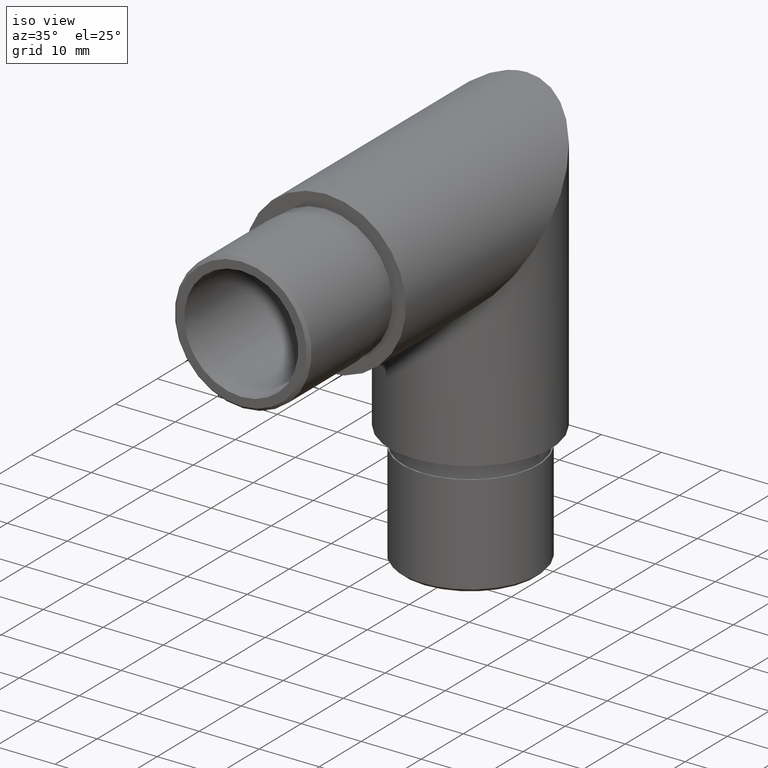
[diagram: clean part render]
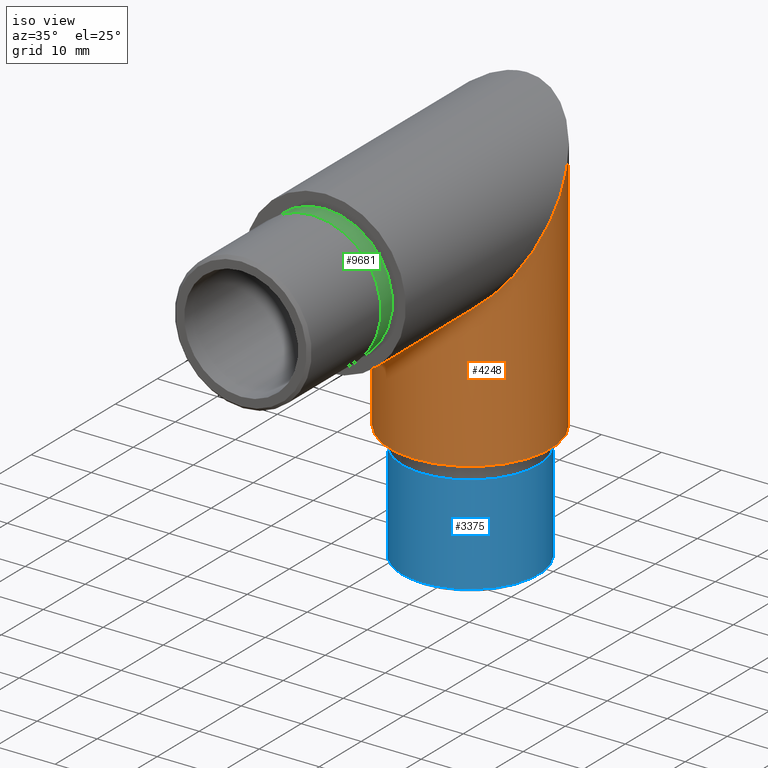
[diagram: same view with three faces highlighted in distinct colors, each labeled with its STEP entity id]
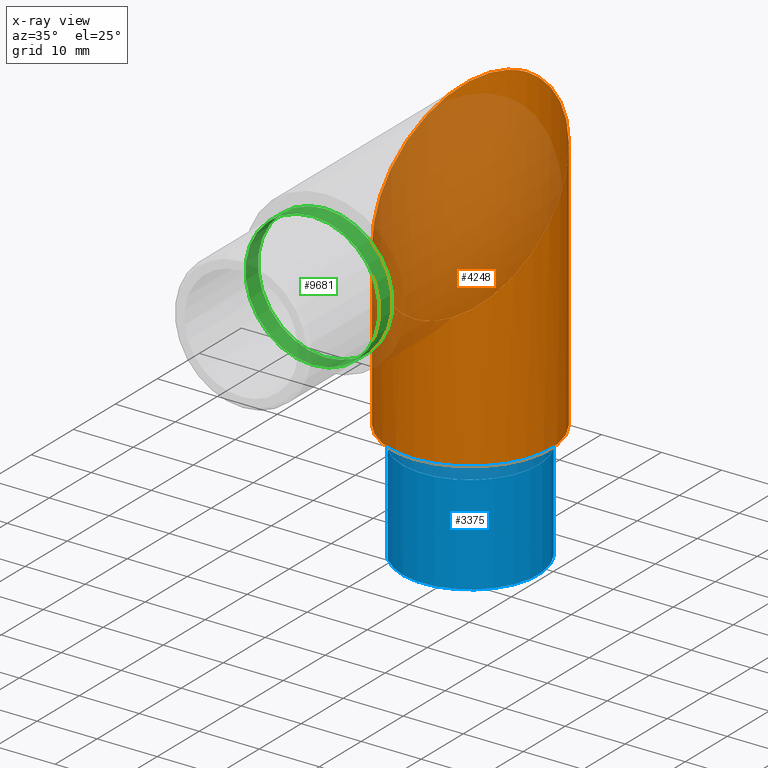
[diagram: x-ray of the same camera — body ghosted, the three highlighted faces saturated]
A machine part, iso view with three faces highlighted in distinct colors.
The next image is the same camera in x-ray (body ghosted, the three faces saturated) — at least one of them is partly hidden behind the body in this view.
Their STEP definitions:

[orange] entity #4248 — the highlighted cylindrical surface (bore or boss wall) has radius 13.45 mm, axis along (0, -0, -1).
#117 = CARTESIAN_POINT ( 'NONE',  ( 0.0000000000000000000, 34.54999999999986900, -34.54999999999999700 ) ) ;
#163 = DIRECTION ( 'NONE',  ( 0.0000000000000000000, -3.615053263974822800E-015, -1.000000000000000000 ) ) ;
#234 = DIRECTION ( 'NONE',  ( 0.0000000000000000000, 1.000000000000000000, -3.611320247386661200E-015 ) ) ;
#412 = CARTESIAN_POINT ( 'NONE',  ( 0.0000000000000000000, 21.09999999999994800, -13.44999999999999900 ) ) ;
#417 = EDGE_CURVE ( 'NONE', #1185, #1185, #6218, .T. ) ;
#1079 = AXIS2_PLACEMENT_3D ( 'NONE', #10225, #163, #6806 ) ;
#1185 = VERTEX_POINT ( 'NONE', #5514 ) ;
#1828 = VERTEX_POINT ( 'NONE', #412 ) ;
#2217 = CYLINDRICAL_SURFACE ( 'NONE', #1079, 13.45000000000000300 ) ;
#2271 = ORIENTED_EDGE ( 'NONE', *, *, #417, .T. ) ;
#2777 = CARTESIAN_POINT ( 'NONE',  ( 26.89999999999999900, 48.00000000000005000, 13.45000000000000500 ) ) ;
#2811 = CARTESIAN_POINT ( 'NONE',  ( 0.0000000000000000000, 21.09999999999994800, -13.44999999999999900 ) ) ;
#3341 = EDGE_LOOP ( 'NONE', ( #5848 ) ) ;
#3537 =( BOUNDED_CURVE ( )  B_SPLINE_CURVE ( 3, ( #2811, #10386, #7838, #9436, #2777, #5295, #9542 ),
 .UNSPECIFIED., .T., .F. ) 
 B_SPLINE_CURVE_WITH_KNOTS ( ( 4, 3, 4 ),
 ( 0.0000000000000000000, 3.141592653589793100, 6.283185307179586200 ),
 .UNSPECIFIED. ) 
 CURVE ( )  GEOMETRIC_REPRESENTATION_ITEM ( )  RATIONAL_B_SPLINE_CURVE ( ( 1.000000000000000000, 0.3333333333333333700, 0.3333333333333333700, 1.000000000000000000, 0.3333333333333333700, 0.3333333333333333700, 1.000000000000000000 ) ) 
 REPRESENTATION_ITEM ( '' )  );
#3547 = DIRECTION ( 'NONE',  ( -0.0000000000000000000, 3.615053263974822800E-015, 1.000000000000000000 ) ) ;
#4248 = ADVANCED_FACE ( 'NONE', ( #9064, #9984 ), #2217, .T. ) ;
#5295 = CARTESIAN_POINT ( 'NONE',  ( 26.89999999999999900, 21.09999999999994800, -13.44999999999999900 ) ) ;
#5409 = AXIS2_PLACEMENT_3D ( 'NONE', #117, #3547, #234 ) ;
#5514 = CARTESIAN_POINT ( 'NONE',  ( 0.0000000000000000000, 47.99999999999987900, -34.55000000000004700 ) ) ;
#5586 = EDGE_LOOP ( 'NONE', ( #2271 ) ) ;
#5848 = ORIENTED_EDGE ( 'NONE', *, *, #9043, .T. ) ;
#6218 = CIRCLE ( 'NONE', #5409, 13.45000000000000300 ) ;
#6806 = DIRECTION ( 'NONE',  ( 0.0000000000000000000, 1.000000000000000000, -3.615053263974822100E-015 ) ) ;
#7838 = CARTESIAN_POINT ( 'NONE',  ( -26.89999999999999900, 48.00000000000005000, 13.44999999999999900 ) ) ;
#9043 = EDGE_CURVE ( 'NONE', #1828, #1828, #3537, .T. ) ;
#9064 = FACE_OUTER_BOUND ( 'NONE', #3341, .T. ) ;
#9436 = CARTESIAN_POINT ( 'NONE',  ( -1.647149944853190000E-015, 48.00000000000004300, 13.44999999999999900 ) ) ;
#9542 = CARTESIAN_POINT ( 'NONE',  ( 0.0000000000000000000, 21.09999999999994800, -13.44999999999999900 ) ) ;
#9984 = FACE_OUTER_BOUND ( 'NONE', #5586, .T. ) ;
#10225 = CARTESIAN_POINT ( 'NONE',  ( 0.0000000000000000000, 34.54999999999999700, 0.0000000000000000000 ) ) ;
#10386 = CARTESIAN_POINT ( 'NONE',  ( -26.89999999999999900, 21.09999999999994800, -13.44999999999999900 ) ) ;

[blue] entity #3375 — the highlighted cylindrical surface (bore or boss wall) has radius 11.4 mm, axis along (-0, 0, 1).
#28 = CARTESIAN_POINT ( 'NONE',  ( 0.0000000000000000000, 34.54999999999981200, -54.05000000000000400 ) ) ;
#861 = AXIS2_PLACEMENT_3D ( 'NONE', #10492, #5405, #8697 ) ;
#1249 = CARTESIAN_POINT ( 'NONE',  ( 0.0000000000000000000, 34.54999999999981200, -54.54999999999999700 ) ) ;
#1370 = CARTESIAN_POINT ( 'NONE',  ( -11.40000000000000000, 34.54999999999981200, -54.05000000000000400 ) ) ;
#2669 = EDGE_LOOP ( 'NONE', ( #2770 ) ) ;
#2766 = AXIS2_PLACEMENT_3D ( 'NONE', #28, #8487, #3506 ) ;
#2770 = ORIENTED_EDGE ( 'NONE', *, *, #3832, .T. ) ;
#2927 = CARTESIAN_POINT ( 'NONE',  ( 0.0000000000000000000, 45.94999999999986800, -37.55000000000003300 ) ) ;
#3375 = ADVANCED_FACE ( 'NONE', ( #4614, #6567 ), #4223, .T. ) ;
#3506 = DIRECTION ( 'NONE',  ( -1.000000000000000000, 0.0000000000000000000, 0.0000000000000000000 ) ) ;
#3532 = CIRCLE ( 'NONE', #861, 11.40000000000000000 ) ;
#3832 = EDGE_CURVE ( 'NONE', #10766, #10766, #3532, .T. ) ;
#4223 = CYLINDRICAL_SURFACE ( 'NONE', #5364, 11.40000000000000000 ) ;
#4303 = ORIENTED_EDGE ( 'NONE', *, *, #10758, .T. ) ;
#4614 = FACE_OUTER_BOUND ( 'NONE', #9032, .T. ) ;
#4870 = CIRCLE ( 'NONE', #2766, 11.40000000000000000 ) ;
#5364 = AXIS2_PLACEMENT_3D ( 'NONE', #1249, #10600, #7243 ) ;
#5405 = DIRECTION ( 'NONE',  ( 0.0000000000000000000, -3.386180225106727400E-015, -1.000000000000000000 ) ) ;
#5774 = VERTEX_POINT ( 'NONE', #1370 ) ;
#6567 = FACE_OUTER_BOUND ( 'NONE', #2669, .T. ) ;
#7243 = DIRECTION ( 'NONE',  ( 0.0000000000000000000, -1.000000000000000000, 3.652049423109067200E-015 ) ) ;
#8487 = DIRECTION ( 'NONE',  ( 0.0000000000000000000, 0.0000000000000000000, 1.000000000000000000 ) ) ;
#8697 = DIRECTION ( 'NONE',  ( 0.0000000000000000000, 1.000000000000000000, -3.652049423109067200E-015 ) ) ;
#9032 = EDGE_LOOP ( 'NONE', ( #4303 ) ) ;
#10492 = CARTESIAN_POINT ( 'NONE',  ( 0.0000000000000000000, 34.54999999999986200, -37.54999999999999000 ) ) ;
#10600 = DIRECTION ( 'NONE',  ( -0.0000000000000000000, 3.386180225106727800E-015, 1.000000000000000000 ) ) ;
#10758 = EDGE_CURVE ( 'NONE', #5774, #5774, #4870, .T. ) ;
#10766 = VERTEX_POINT ( 'NONE', #2927 ) ;

[green] entity #9681 — the highlighted cylindrical surface (bore or boss wall) has radius 11.2 mm, axis along (-0, 1, -0).
#23 = EDGE_CURVE ( 'NONE', #2215, #2215, #2928, .T. ) ;
#560 = DIRECTION ( 'NONE',  ( -0.0000000000000000000, -1.000000000000000000, -0.0000000000000000000 ) ) ;
#1205 = DIRECTION ( 'NONE',  ( 0.0000000000000000000, -1.000000000000000000, 0.0000000000000000000 ) ) ;
#1627 = ORIENTED_EDGE ( 'NONE', *, *, #3992, .T. ) ;
#1972 = FACE_OUTER_BOUND ( 'NONE', #5146, .T. ) ;
#2085 = CARTESIAN_POINT ( 'NONE',  ( 0.0000000000000000000, 0.0000000000000000000, 11.20000000000000100 ) ) ;
#2215 = VERTEX_POINT ( 'NONE', #9733 ) ;
#2310 = AXIS2_PLACEMENT_3D ( 'NONE', #3844, #560, #7112 ) ;
#2928 = CIRCLE ( 'NONE', #8563, 11.20000000000000100 ) ;
#3656 = DIRECTION ( 'NONE',  ( -0.0000000000000000000, 1.000000000000000000, -0.0000000000000000000 ) ) ;
#3844 = CARTESIAN_POINT ( 'NONE',  ( 0.0000000000000000000, 0.0000000000000000000, 0.0000000000000000000 ) ) ;
#3992 = EDGE_CURVE ( 'NONE', #6032, #6032, #6177, .T. ) ;
#5146 = EDGE_LOOP ( 'NONE', ( #6859 ) ) ;
#5794 = FACE_OUTER_BOUND ( 'NONE', #7804, .T. ) ;
#6032 = VERTEX_POINT ( 'NONE', #2085 ) ;
#6177 = CIRCLE ( 'NONE', #2310, 11.20000000000000100 ) ;
#6284 = DIRECTION ( 'NONE',  ( 0.0000000000000000000, 0.0000000000000000000, -1.000000000000000000 ) ) ;
#6859 = ORIENTED_EDGE ( 'NONE', *, *, #23, .F. ) ;
#6913 = AXIS2_PLACEMENT_3D ( 'NONE', #8735, #3656, #10397 ) ;
#7112 = DIRECTION ( 'NONE',  ( 0.0000000000000000000, 0.0000000000000000000, 1.000000000000000000 ) ) ;
#7804 = EDGE_LOOP ( 'NONE', ( #1627 ) ) ;
#7936 = CARTESIAN_POINT ( 'NONE',  ( 0.0000000000000000000, -3.000000000000000000, 0.0000000000000000000 ) ) ;
#8563 = AXIS2_PLACEMENT_3D ( 'NONE', #7936, #1205, #6284 ) ;
#8735 = CARTESIAN_POINT ( 'NONE',  ( 0.0000000000000000000, -3.000000000000000000, 0.0000000000000000000 ) ) ;
#8927 = CYLINDRICAL_SURFACE ( 'NONE', #6913, 11.20000000000000100 ) ;
#9681 = ADVANCED_FACE ( 'NONE', ( #1972, #5794 ), #8927, .T. ) ;
#9733 = CARTESIAN_POINT ( 'NONE',  ( 0.0000000000000000000, -3.000000000000000000, -11.20000000000000100 ) ) ;
#10397 = DIRECTION ( 'NONE',  ( 0.0000000000000000000, 0.0000000000000000000, 1.000000000000000000 ) ) ;